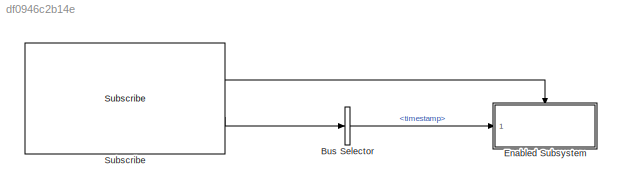
MODEL slx_df0946c2b14e
KIND model
CONFIG AbsTol = auto
CONFIG EnableMultiTasking = off
CONFIG FixedStep = auto
CONFIG MaxStep = auto
CONFIG MinStep = auto
CONFIG RelTol = 1e-3
CONFIG SampleTimeConstraint = Unconstrained
CONFIG SolverName = FixedStepAuto
CONFIG StartTime = 0.0
CONFIG StopTime = inf
BLOCK [BusSelector] Bus Selector
  OutputSignals = timestamp
  Ports = [1, 1]
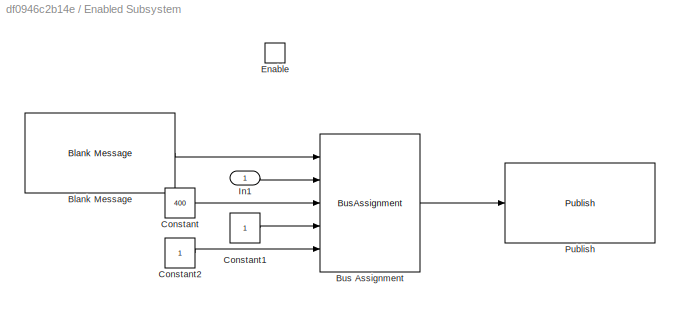
BLOCK [SubSystem] Enabled Subsystem
  Ports = [1, 0, 1]
  RequestExecContextInheritance = off
  TreatAsAtomicUnit = on
BLOCK [Reference] Enabled Subsystem/Blank Message  REF=ros2lib/Blank Message  (lib defined in slx_3c1549211f48)
  Ports = [0, 1]
  SourceBlock = ros2lib/Blank Message
  SourceProductBaseCode = RR
  SourceType = ROS2 Blank Message
BLOCK [BusAssignment] Enabled Subsystem/Bus Assignment
  AssignedSignals = timestamp,command,param1,target_system
  Ports = [5, 1]
BLOCK [Constant] Enabled Subsystem/Constant
  OutDataTypeStr = uint32
  Value = 400
BLOCK [Constant] Enabled Subsystem/Constant1
  OutDataTypeStr = single
BLOCK [Constant] Enabled Subsystem/Constant2
  OutDataTypeStr = uint8
BLOCK [EnablePort] Enabled Subsystem/Enable
  Ports = []
BLOCK [Inport] Enabled Subsystem/In1
BLOCK [Reference] Enabled Subsystem/Publish  REF=ros2lib/Publish  (lib defined in slx_3c1549211f48)
  Ports = [1]
  SourceBlock = ros2lib/Publish
  SourceProductBaseCode = RR
  SourceType = ROS2 Publish
BLOCK [Reference] Subscribe  REF=ros2lib/Subscribe  (lib defined in slx_3c1549211f48)
  Ports = [0, 2]
  SourceBlock = ros2lib/Subscribe
  SourceProductBaseCode = RR
  SourceType = ROS2 Subscribe
LINE Bus Selector:1 -> Enabled Subsystem:1
LINE Enabled Subsystem/Blank Message:1 -> Enabled Subsystem/Bus Assignment:1
LINE Enabled Subsystem/Bus Assignment:1 -> Enabled Subsystem/Publish:1
LINE Enabled Subsystem/Constant1:1 -> Enabled Subsystem/Bus Assignment:4
LINE Enabled Subsystem/Constant2:1 -> Enabled Subsystem/Bus Assignment:5
LINE Enabled Subsystem/Constant:1 -> Enabled Subsystem/Bus Assignment:3
LINE Enabled Subsystem/In1:1 -> Enabled Subsystem/Bus Assignment:2
LINE Subscribe:1 -> Enabled Subsystem:enable
LINE Subscribe:2 -> Bus Selector:1
